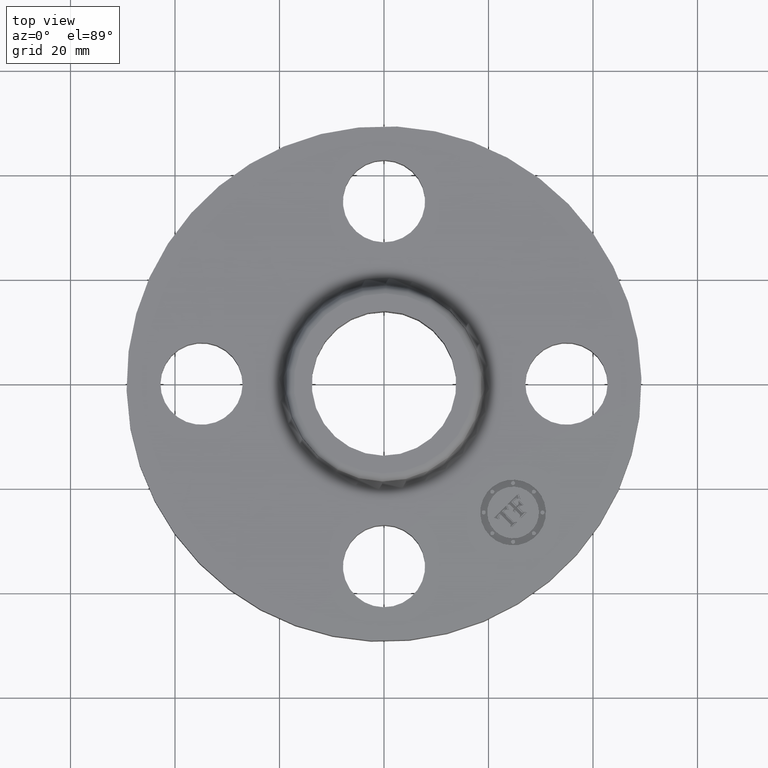
[diagram: clean part render]
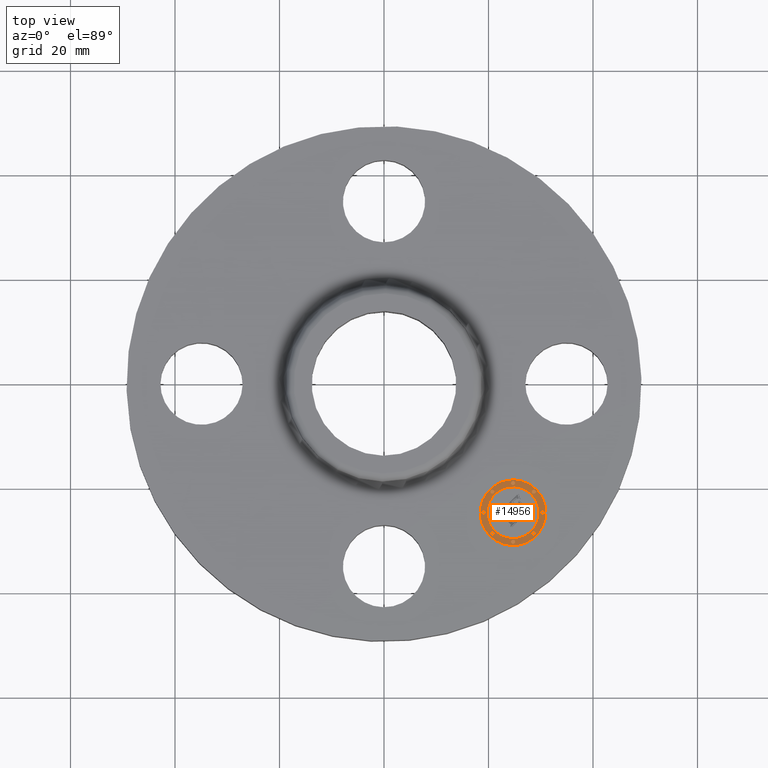
[diagram: same view with one face highlighted and labeled with its STEP entity id]
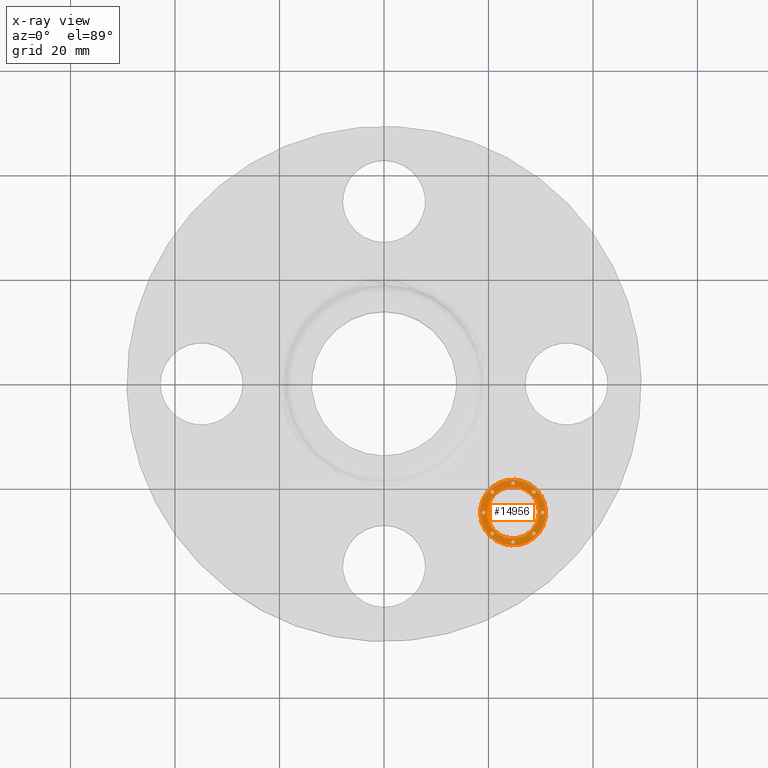
[diagram: x-ray of the same camera — body ghosted, the highlighted face saturated]
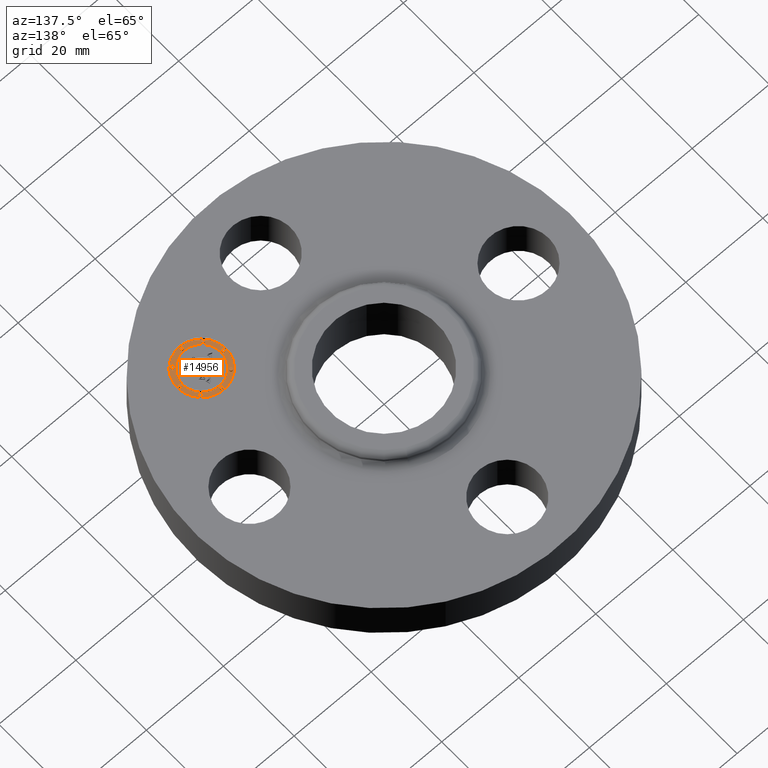
[diagram: same view with one face highlighted and labeled with its STEP entity id]
A machine part, top view. The second image highlights one B-rep face of the part: STEP entity #14956.
The next image is the same camera in x-ray: the body ghosted, the highlighted face saturated — about 0% of this face is hidden behind the body in this view.
A second angle (auxiliary view) of the same face is appended — the face is thin or edge-on in the first view.
In plain terms, the highlighted planar face has unit normal (0, -0, 1).
Its self-contained STEP definition (entity closure, byte-faithful):
#3607=AXIS2_PLACEMENT_3D('Plane Axis2P3D',#3604,#3605,#3606) ;
#14778=AXIS2_PLACEMENT_3D('Circle Axis2P3D',#14776,#14777,$) ;
#14787=AXIS2_PLACEMENT_3D('Circle Axis2P3D',#14785,#14786,$) ;
#14796=AXIS2_PLACEMENT_3D('Circle Axis2P3D',#14794,#14795,$) ;
#14805=AXIS2_PLACEMENT_3D('Circle Axis2P3D',#14803,#14804,$) ;
#14814=AXIS2_PLACEMENT_3D('Circle Axis2P3D',#14812,#14813,$) ;
#14823=AXIS2_PLACEMENT_3D('Circle Axis2P3D',#14821,#14822,$) ;
#14832=AXIS2_PLACEMENT_3D('Circle Axis2P3D',#14830,#14831,$) ;
#14841=AXIS2_PLACEMENT_3D('Circle Axis2P3D',#14839,#14840,$) ;
#14850=AXIS2_PLACEMENT_3D('Circle Axis2P3D',#14848,#14849,$) ;
#14859=AXIS2_PLACEMENT_3D('Circle Axis2P3D',#14857,#14858,$) ;
#14868=AXIS2_PLACEMENT_3D('Circle Axis2P3D',#14866,#14867,$) ;
#14877=AXIS2_PLACEMENT_3D('Circle Axis2P3D',#14875,#14876,$) ;
#14886=AXIS2_PLACEMENT_3D('Circle Axis2P3D',#14884,#14885,$) ;
#14895=AXIS2_PLACEMENT_3D('Circle Axis2P3D',#14893,#14894,$) ;
#14904=AXIS2_PLACEMENT_3D('Circle Axis2P3D',#14902,#14903,$) ;
#14913=AXIS2_PLACEMENT_3D('Circle Axis2P3D',#14911,#14912,$) ;
#14922=AXIS2_PLACEMENT_3D('Circle Axis2P3D',#14920,#14921,$) ;
#14931=AXIS2_PLACEMENT_3D('Circle Axis2P3D',#14929,#14930,$) ;
#14940=AXIS2_PLACEMENT_3D('Circle Axis2P3D',#14938,#14939,$) ;
#14949=AXIS2_PLACEMENT_3D('Circle Axis2P3D',#14947,#14948,$) ;
#3604=CARTESIAN_POINT('Axis2P3D Location',(0.,0.,0.425000000002)) ;
#14776=CARTESIAN_POINT('Axis2P3D Location',(0.972271824135,-0.972271824135,0.425000000002)) ;
#14780=CARTESIAN_POINT('Vertex',(1.14728075248,-0.797262895791,0.425000000002)) ;
#14782=CARTESIAN_POINT('Vertex',(0.797262895791,-1.14728075248,0.425000000002)) ;
#14785=CARTESIAN_POINT('Axis2P3D Location',(0.972271824135,-0.972271824135,0.425000000002)) ;
#14794=CARTESIAN_POINT('Axis2P3D Location',(0.972271824135,-0.972271824135,0.425000000002)) ;
#14798=CARTESIAN_POINT('Vertex',(0.834386001803,-1.11015764647,0.425000000002)) ;
#14800=CARTESIAN_POINT('Vertex',(1.11015764647,-0.834386001803,0.425000000002)) ;
#14803=CARTESIAN_POINT('Axis2P3D Location',(0.972271824135,-0.972271824135,0.425000000002)) ;
#14812=CARTESIAN_POINT('Axis2P3D Location',(0.815824448797,-0.815824448797,0.425000000002)) ;
#14816=CARTESIAN_POINT('Vertex',(0.805217847079,-0.826431050515,0.425000000002)) ;
#14818=CARTESIAN_POINT('Vertex',(0.826431050515,-0.805217847079,0.425000000002)) ;
#14821=CARTESIAN_POINT('Axis2P3D Location',(0.815824448797,-0.815824448797,0.425000000002)) ;
#14830=CARTESIAN_POINT('Axis2P3D Location',(1.12871919947,-0.815824448797,0.425000000002)) ;
#14834=CARTESIAN_POINT('Vertex',(1.11811259776,-0.826431050515,0.425000000002)) ;
#14836=CARTESIAN_POINT('Vertex',(1.13932580119,-0.805217847079,0.425000000002)) ;
#14839=CARTESIAN_POINT('Axis2P3D Location',(1.12871919947,-0.815824448797,0.425000000002)) ;
#14848=CARTESIAN_POINT('Axis2P3D Location',(0.972271824135,-0.751021824134,0.425000000002)) ;
#14852=CARTESIAN_POINT('Vertex',(0.961665222418,-0.761628425852,0.425000000002)) ;
#14854=CARTESIAN_POINT('Vertex',(0.982878425853,-0.740415222417,0.425000000002)) ;
#14857=CARTESIAN_POINT('Axis2P3D Location',(0.972271824135,-0.751021824134,0.425000000002)) ;
#14866=CARTESIAN_POINT('Axis2P3D Location',(1.12871919947,-1.12871919947,0.425000000002)) ;
#14870=CARTESIAN_POINT('Vertex',(1.11811259776,-1.13932580119,0.425000000002)) ;
#14872=CARTESIAN_POINT('Vertex',(1.13932580119,-1.11811259776,0.425000000002)) ;
#14875=CARTESIAN_POINT('Axis2P3D Location',(1.12871919947,-1.12871919947,0.425000000002)) ;
#14884=CARTESIAN_POINT('Axis2P3D Location',(1.19352182414,-0.972271824135,0.425000000002)) ;
#14888=CARTESIAN_POINT('Vertex',(1.18291522242,-0.982878425853,0.425000000002)) ;
#14890=CARTESIAN_POINT('Vertex',(1.20412842585,-0.961665222418,0.425000000002)) ;
#14893=CARTESIAN_POINT('Axis2P3D Location',(1.19352182414,-0.972271824135,0.425000000002)) ;
#14902=CARTESIAN_POINT('Axis2P3D Location',(0.815824448797,-1.12871919947,0.425000000002)) ;
#14906=CARTESIAN_POINT('Vertex',(0.826431050515,-1.11811259776,0.425000000002)) ;
#14908=CARTESIAN_POINT('Vertex',(0.805217847079,-1.13932580119,0.425000000002)) ;
#14911=CARTESIAN_POINT('Axis2P3D Location',(0.815824448797,-1.12871919947,0.425000000002)) ;
#14920=CARTESIAN_POINT('Axis2P3D Location',(0.751021824134,-0.972271824135,0.425000000002)) ;
#14924=CARTESIAN_POINT('Vertex',(0.761628425852,-0.961665222418,0.425000000002)) ;
#14926=CARTESIAN_POINT('Vertex',(0.740415222417,-0.982878425853,0.425000000002)) ;
#14929=CARTESIAN_POINT('Axis2P3D Location',(0.751021824134,-0.972271824135,0.425000000002)) ;
#14938=CARTESIAN_POINT('Axis2P3D Location',(0.972271824135,-1.19352182414,0.425000000002)) ;
#14942=CARTESIAN_POINT('Vertex',(0.982878425853,-1.18291522242,0.425000000002)) ;
#14944=CARTESIAN_POINT('Vertex',(0.961665222418,-1.20412842585,0.425000000002)) ;
#14947=CARTESIAN_POINT('Axis2P3D Location',(0.972271824135,-1.19352182414,0.425000000002)) ;
#3605=DIRECTION('Axis2P3D Direction',(0.,-0.,0.0393700787402)) ;
#3606=DIRECTION('Axis2P3D XDirection',(0.027838849653,0.027838849653,0.)) ;
#14777=DIRECTION('Axis2P3D Direction',(0.,-0.,0.0393700787402)) ;
#14786=DIRECTION('Axis2P3D Direction',(0.,-0.,0.0393700787402)) ;
#14795=DIRECTION('Axis2P3D Direction',(0.,-0.,0.0393700787402)) ;
#14804=DIRECTION('Axis2P3D Direction',(0.,-0.,0.0393700787402)) ;
#14813=DIRECTION('Axis2P3D Direction',(0.,-0.,0.0393700787402)) ;
#14822=DIRECTION('Axis2P3D Direction',(0.,-0.,0.0393700787402)) ;
#14831=DIRECTION('Axis2P3D Direction',(0.,-0.,0.0393700787402)) ;
#14840=DIRECTION('Axis2P3D Direction',(0.,-0.,0.0393700787402)) ;
#14849=DIRECTION('Axis2P3D Direction',(0.,-0.,0.0393700787402)) ;
#14858=DIRECTION('Axis2P3D Direction',(0.,-0.,0.0393700787402)) ;
#14867=DIRECTION('Axis2P3D Direction',(0.,-0.,0.0393700787402)) ;
#14876=DIRECTION('Axis2P3D Direction',(0.,-0.,0.0393700787402)) ;
#14885=DIRECTION('Axis2P3D Direction',(0.,-0.,0.0393700787402)) ;
#14894=DIRECTION('Axis2P3D Direction',(0.,-0.,0.0393700787402)) ;
#14903=DIRECTION('Axis2P3D Direction',(0.,-0.,0.0393700787402)) ;
#14912=DIRECTION('Axis2P3D Direction',(0.,-0.,0.0393700787402)) ;
#14921=DIRECTION('Axis2P3D Direction',(0.,-0.,0.0393700787402)) ;
#14930=DIRECTION('Axis2P3D Direction',(0.,-0.,0.0393700787402)) ;
#14939=DIRECTION('Axis2P3D Direction',(0.,-0.,0.0393700787402)) ;
#14948=DIRECTION('Axis2P3D Direction',(0.,-0.,0.0393700787402)) ;
#14791=ORIENTED_EDGE('',*,*,#14784,.T.) ;
#14792=ORIENTED_EDGE('',*,*,#14789,.T.) ;
#14809=ORIENTED_EDGE('',*,*,#14802,.F.) ;
#14810=ORIENTED_EDGE('',*,*,#14807,.F.) ;
#14827=ORIENTED_EDGE('',*,*,#14820,.F.) ;
#14828=ORIENTED_EDGE('',*,*,#14825,.F.) ;
#14845=ORIENTED_EDGE('',*,*,#14838,.F.) ;
#14846=ORIENTED_EDGE('',*,*,#14843,.F.) ;
#14863=ORIENTED_EDGE('',*,*,#14856,.F.) ;
#14864=ORIENTED_EDGE('',*,*,#14861,.F.) ;
#14881=ORIENTED_EDGE('',*,*,#14874,.F.) ;
#14882=ORIENTED_EDGE('',*,*,#14879,.F.) ;
#14899=ORIENTED_EDGE('',*,*,#14892,.F.) ;
#14900=ORIENTED_EDGE('',*,*,#14897,.F.) ;
#14917=ORIENTED_EDGE('',*,*,#14910,.F.) ;
#14918=ORIENTED_EDGE('',*,*,#14915,.F.) ;
#14935=ORIENTED_EDGE('',*,*,#14928,.F.) ;
#14936=ORIENTED_EDGE('',*,*,#14933,.F.) ;
#14953=ORIENTED_EDGE('',*,*,#14946,.F.) ;
#14954=ORIENTED_EDGE('',*,*,#14951,.F.) ;
#14811=FACE_BOUND('',#14808,.T.) ;
#14829=FACE_BOUND('',#14826,.T.) ;
#14847=FACE_BOUND('',#14844,.T.) ;
#14865=FACE_BOUND('',#14862,.T.) ;
#14883=FACE_BOUND('',#14880,.T.) ;
#14901=FACE_BOUND('',#14898,.T.) ;
#14919=FACE_BOUND('',#14916,.T.) ;
#14937=FACE_BOUND('',#14934,.T.) ;
#14955=FACE_BOUND('',#14952,.T.) ;
#14956=ADVANCED_FACE('PartBody',(#14793,#14811,#14829,#14847,#14865,#14883,#14901,#14919,#14937,#14955),#3608,.T.) ;
#14779=CIRCLE('generated circle',#14778,0.247500000001) ;
#14788=CIRCLE('generated circle',#14787,0.247500000001) ;
#14797=CIRCLE('generated circle',#14796,0.195000000001) ;
#14806=CIRCLE('generated circle',#14805,0.195000000001) ;
#14815=CIRCLE('generated circle',#14814,0.0150000000001) ;
#14824=CIRCLE('generated circle',#14823,0.0150000000001) ;
#14833=CIRCLE('generated circle',#14832,0.0150000000001) ;
#14842=CIRCLE('generated circle',#14841,0.0150000000001) ;
#14851=CIRCLE('generated circle',#14850,0.0150000000001) ;
#14860=CIRCLE('generated circle',#14859,0.0150000000001) ;
#14869=CIRCLE('generated circle',#14868,0.0150000000001) ;
#14878=CIRCLE('generated circle',#14877,0.0150000000001) ;
#14887=CIRCLE('generated circle',#14886,0.0150000000001) ;
#14896=CIRCLE('generated circle',#14895,0.0150000000001) ;
#14905=CIRCLE('generated circle',#14904,0.0150000000001) ;
#14914=CIRCLE('generated circle',#14913,0.0150000000001) ;
#14923=CIRCLE('generated circle',#14922,0.0150000000001) ;
#14932=CIRCLE('generated circle',#14931,0.0150000000001) ;
#14941=CIRCLE('generated circle',#14940,0.0150000000001) ;
#14950=CIRCLE('generated circle',#14949,0.0150000000001) ;
#14784=EDGE_CURVE('',#14781,#14783,#14779,.T.) ;
#14789=EDGE_CURVE('',#14783,#14781,#14788,.T.) ;
#14802=EDGE_CURVE('',#14799,#14801,#14797,.T.) ;
#14807=EDGE_CURVE('',#14801,#14799,#14806,.T.) ;
#14820=EDGE_CURVE('',#14817,#14819,#14815,.T.) ;
#14825=EDGE_CURVE('',#14819,#14817,#14824,.T.) ;
#14838=EDGE_CURVE('',#14835,#14837,#14833,.T.) ;
#14843=EDGE_CURVE('',#14837,#14835,#14842,.T.) ;
#14856=EDGE_CURVE('',#14853,#14855,#14851,.T.) ;
#14861=EDGE_CURVE('',#14855,#14853,#14860,.T.) ;
#14874=EDGE_CURVE('',#14871,#14873,#14869,.T.) ;
#14879=EDGE_CURVE('',#14873,#14871,#14878,.T.) ;
#14892=EDGE_CURVE('',#14889,#14891,#14887,.T.) ;
#14897=EDGE_CURVE('',#14891,#14889,#14896,.T.) ;
#14910=EDGE_CURVE('',#14907,#14909,#14905,.T.) ;
#14915=EDGE_CURVE('',#14909,#14907,#14914,.T.) ;
#14928=EDGE_CURVE('',#14925,#14927,#14923,.T.) ;
#14933=EDGE_CURVE('',#14927,#14925,#14932,.T.) ;
#14946=EDGE_CURVE('',#14943,#14945,#14941,.T.) ;
#14951=EDGE_CURVE('',#14945,#14943,#14950,.T.) ;
#14790=EDGE_LOOP('',(#14791,#14792)) ;
#14808=EDGE_LOOP('',(#14809,#14810)) ;
#14826=EDGE_LOOP('',(#14827,#14828)) ;
#14844=EDGE_LOOP('',(#14845,#14846)) ;
#14862=EDGE_LOOP('',(#14863,#14864)) ;
#14880=EDGE_LOOP('',(#14881,#14882)) ;
#14898=EDGE_LOOP('',(#14899,#14900)) ;
#14916=EDGE_LOOP('',(#14917,#14918)) ;
#14934=EDGE_LOOP('',(#14935,#14936)) ;
#14952=EDGE_LOOP('',(#14953,#14954)) ;
#14793=FACE_OUTER_BOUND('',#14790,.T.) ;
#3608=PLANE('',#3607) ;
#14781=VERTEX_POINT('',#14780) ;
#14783=VERTEX_POINT('',#14782) ;
#14799=VERTEX_POINT('',#14798) ;
#14801=VERTEX_POINT('',#14800) ;
#14817=VERTEX_POINT('',#14816) ;
#14819=VERTEX_POINT('',#14818) ;
#14835=VERTEX_POINT('',#14834) ;
#14837=VERTEX_POINT('',#14836) ;
#14853=VERTEX_POINT('',#14852) ;
#14855=VERTEX_POINT('',#14854) ;
#14871=VERTEX_POINT('',#14870) ;
#14873=VERTEX_POINT('',#14872) ;
#14889=VERTEX_POINT('',#14888) ;
#14891=VERTEX_POINT('',#14890) ;
#14907=VERTEX_POINT('',#14906) ;
#14909=VERTEX_POINT('',#14908) ;
#14925=VERTEX_POINT('',#14924) ;
#14927=VERTEX_POINT('',#14926) ;
#14943=VERTEX_POINT('',#14942) ;
#14945=VERTEX_POINT('',#14944) ;